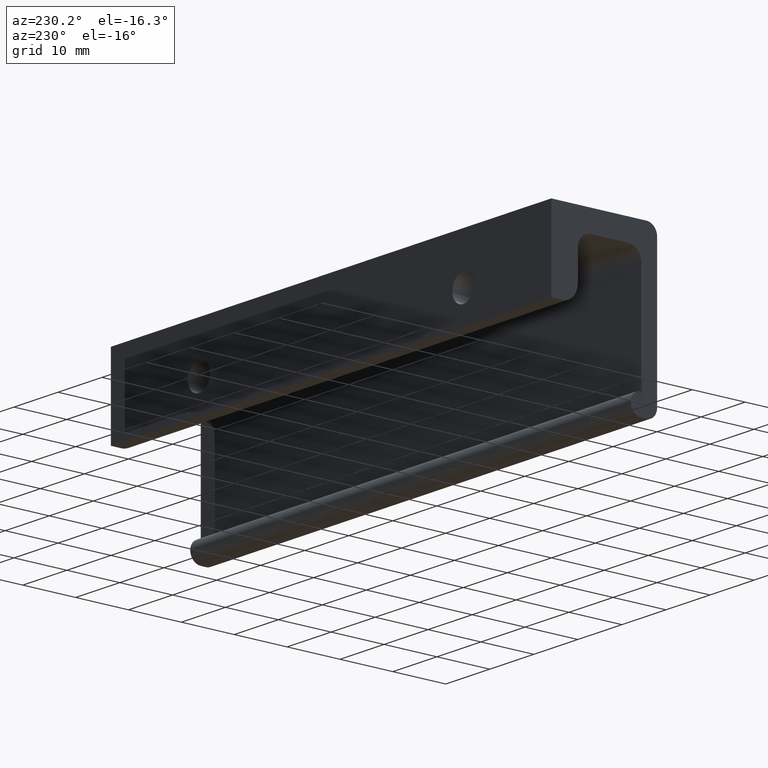
[diagram: clean part render]
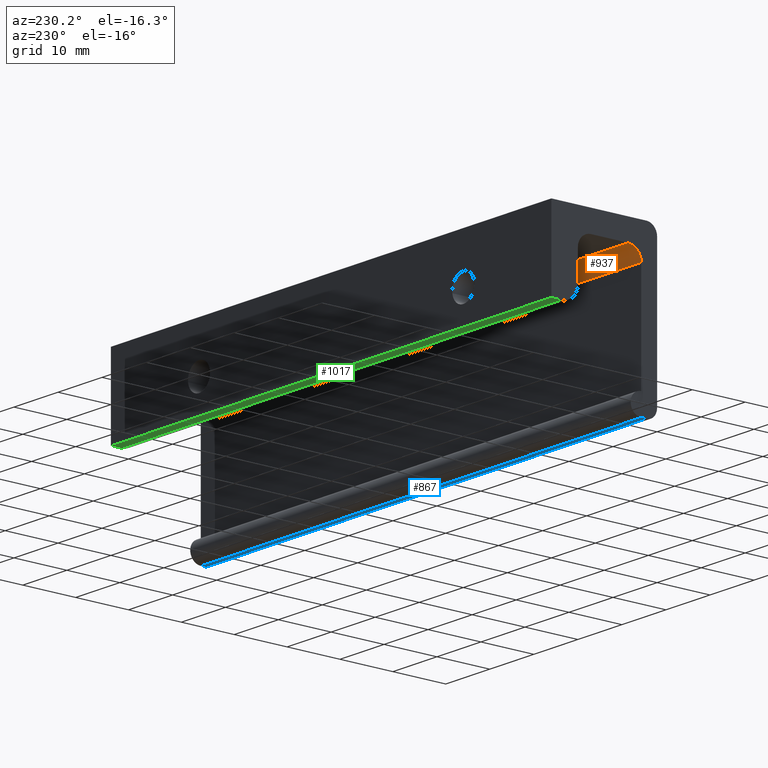
[diagram: same view with three faces highlighted in distinct colors, each labeled with its STEP entity id]
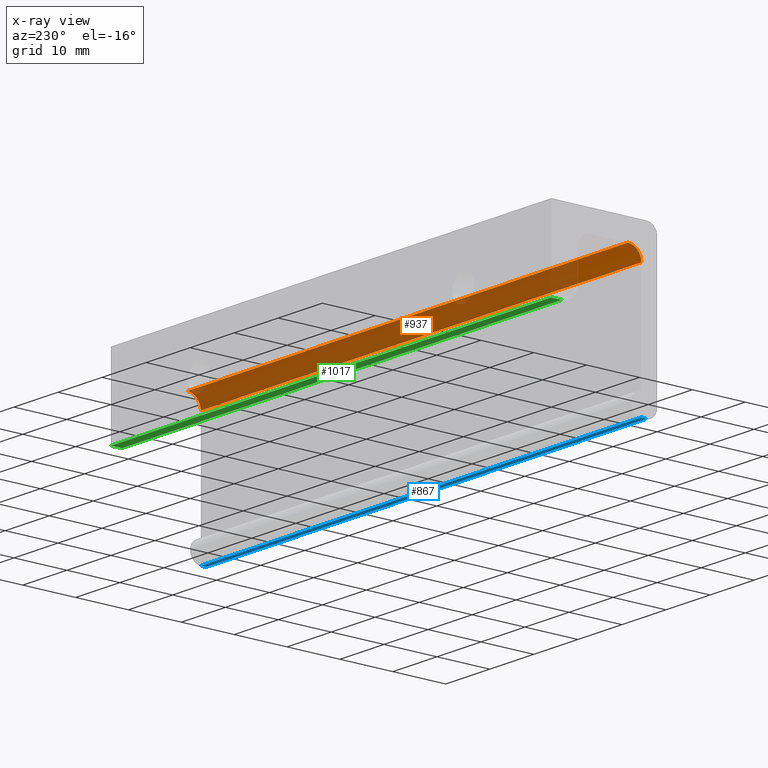
[diagram: x-ray of the same camera — body ghosted, the three highlighted faces saturated]
A machine part, auxiliary view with three faces highlighted in distinct colors.
The next image is the same camera in x-ray (body ghosted, the three faces saturated) — at least one of them is partly hidden behind the body in this view.
Their STEP definitions:

[orange] entity #937 — the highlighted face is a freeform B-spline surface patch.
#520=CARTESIAN_POINT('',(0.0,-14.500000000000000,-4.000000000000085));
#521=VERTEX_POINT('',#520);
#527=CARTESIAN_POINT('',(0.0,-17.0,-6.500000000000000));
#528=VERTEX_POINT('',#527);
#529=CARTESIAN_POINT('',(0.0,-14.500000000000000,-4.000000000000085));
#530=CARTESIAN_POINT('',(0.0,-17.000000000000004,-4.000000000000000));
#531=CARTESIAN_POINT('',(0.0,-17.0,-6.500000000000000));
#539=(BOUNDED_CURVE()B_SPLINE_CURVE(2,(#529,#530,#531),.UNSPECIFIED.,.F.,.U.)CURVE()GEOMETRIC_REPRESENTATION_ITEM()QUASI_UNIFORM_CURVE()RATIONAL_B_SPLINE_CURVE((1.0,0.707106781186548,1.0))REPRESENTATION_ITEM(''));
#540=EDGE_CURVE('',#521,#528,#539,.T.);
#700=CARTESIAN_POINT('',(100.0,-17.0,-6.500000000000000));
#701=VERTEX_POINT('',#700);
#707=CARTESIAN_POINT('',(100.0,-14.500000000000000,-4.000000000000085));
#708=VERTEX_POINT('',#707);
#709=CARTESIAN_POINT('',(100.0,-14.500000000000000,-4.0));
#710=CARTESIAN_POINT('',(100.0,-17.000000000000004,-4.000000000000000));
#711=CARTESIAN_POINT('',(100.0,-17.0,-6.500000000000000));
#719=(BOUNDED_CURVE()B_SPLINE_CURVE(2,(#709,#710,#711),.UNSPECIFIED.,.F.,.U.)CURVE()GEOMETRIC_REPRESENTATION_ITEM()QUASI_UNIFORM_CURVE()RATIONAL_B_SPLINE_CURVE((1.0,0.707106781186548,1.0))REPRESENTATION_ITEM(''));
#720=EDGE_CURVE('',#708,#701,#719,.T.);
#903=CARTESIAN_POINT('',(100.0,-17.0,-6.500000000000000));
#904=CARTESIAN_POINT('',(0.0,-17.0,-6.500000000000000));
#905=QUASI_UNIFORM_CURVE('',1,(#903,#904),.UNSPECIFIED.,.F.,.U.);
#906=EDGE_CURVE('',#701,#528,#905,.T.);
#913=CARTESIAN_POINT('',(102.500000000000000,-14.434557629230310,-4.000856687561107));
#914=CARTESIAN_POINT('',(-2.562500000000000,-14.434557629230310,-4.000856687561107));
#915=CARTESIAN_POINT('',(102.500000000000010,-17.161893971485295,-3.929438872010022));
#916=CARTESIAN_POINT('',(-2.562500000000000,-17.161893971485295,-3.929438872010022));
#917=CARTESIAN_POINT('',(102.500000000000000,-16.995336996054672,-6.652621348837139));
#918=CARTESIAN_POINT('',(-2.562500000000000,-16.995336996054672,-6.652621348837139));
#926=(BOUNDED_SURFACE()B_SPLINE_SURFACE(1,2,((#913,#915,#917),(#914,#916,#918)),.UNSPECIFIED.,.F.,.F.,.U.)B_SPLINE_SURFACE_WITH_KNOTS((2,2),(3,3),(0.0,105.062500000000000),(0.0,4.400105308918333),.UNSPECIFIED.)GEOMETRIC_REPRESENTATION_ITEM()RATIONAL_B_SPLINE_SURFACE(((1.0,0.675590207615660,1.0),(1.0,0.675590207615660,1.0)))REPRESENTATION_ITEM('')SURFACE());
#927=ORIENTED_EDGE('',*,*,#540,.F.);
#928=CARTESIAN_POINT('',(100.0,-14.500000000000000,-4.000000000000085));
#929=CARTESIAN_POINT('',(0.0,-14.500000000000000,-4.000000000000085));
#930=QUASI_UNIFORM_CURVE('',1,(#928,#929),.UNSPECIFIED.,.F.,.U.);
#931=EDGE_CURVE('',#708,#521,#930,.T.);
#932=ORIENTED_EDGE('',*,*,#931,.F.);
#933=ORIENTED_EDGE('',*,*,#720,.T.);
#934=ORIENTED_EDGE('',*,*,#906,.T.);
#935=EDGE_LOOP('',(#927,#932,#933,#934));
#936=FACE_OUTER_BOUND('',#935,.T.);
#937=ADVANCED_FACE('',(#936),#926,.F.);

[blue] entity #867 — the highlighted face is a freeform B-spline surface patch.
#549=CARTESIAN_POINT('',(0.0,-17.000000000000249,-30.0));
#550=VERTEX_POINT('',#549);
#566=CARTESIAN_POINT('',(0.0,-18.0,-30.0));
#567=VERTEX_POINT('',#566);
#568=CARTESIAN_POINT('',(0.0,-17.000000000000249,-30.0));
#569=CARTESIAN_POINT('',(0.0,-18.0,-30.0));
#570=QUASI_UNIFORM_CURVE('',1,(#568,#569),.UNSPECIFIED.,.F.,.U.);
#571=EDGE_CURVE('',#550,#567,#570,.T.);
#661=CARTESIAN_POINT('',(100.0,-18.0,-30.0));
#662=VERTEX_POINT('',#661);
#676=CARTESIAN_POINT('',(100.0,-17.000000000000249,-30.0));
#677=VERTEX_POINT('',#676);
#678=CARTESIAN_POINT('',(100.0,-17.000000000000249,-30.0));
#679=CARTESIAN_POINT('',(100.0,-18.0,-30.0));
#680=QUASI_UNIFORM_CURVE('',1,(#678,#679),.UNSPECIFIED.,.F.,.U.);
#681=EDGE_CURVE('',#677,#662,#680,.T.);
#842=CARTESIAN_POINT('',(100.0,-18.0,-30.0));
#843=CARTESIAN_POINT('',(0.0,-18.0,-30.0));
#844=QUASI_UNIFORM_CURVE('',1,(#842,#843),.UNSPECIFIED.,.F.,.U.);
#845=EDGE_CURVE('',#662,#567,#844,.T.);
#852=CARTESIAN_POINT('',(104.994999806180600,-18.049949998061791,-30.0));
#853=CARTESIAN_POINT('',(-4.995002488389611,-18.049949998061791,-30.0));
#854=CARTESIAN_POINT('',(104.994999806180600,-16.950049975116361,-30.0));
#855=CARTESIAN_POINT('',(-4.995002488389611,-16.950049975116361,-30.0));
#856=B_SPLINE_SURFACE_WITH_KNOTS('',1,1,((#852,#854),(#853,#855)),.UNSPECIFIED.,.F.,.F.,.U.,(2,2),(2,2),(0.0,109.990002294570200),(0.041708334948495,0.958291687403247),.UNSPECIFIED.);
#857=ORIENTED_EDGE('',*,*,#571,.F.);
#858=CARTESIAN_POINT('',(100.0,-17.000000000000249,-30.0));
#859=CARTESIAN_POINT('',(0.0,-17.000000000000249,-30.0));
#860=QUASI_UNIFORM_CURVE('',1,(#858,#859),.UNSPECIFIED.,.F.,.U.);
#861=EDGE_CURVE('',#677,#550,#860,.T.);
#862=ORIENTED_EDGE('',*,*,#861,.F.);
#863=ORIENTED_EDGE('',*,*,#681,.T.);
#864=ORIENTED_EDGE('',*,*,#845,.T.);
#865=EDGE_LOOP('',(#857,#862,#863,#864));
#866=FACE_OUTER_BOUND('',#865,.T.);
#867=ADVANCED_FACE('',(#866),#856,.T.);

[green] entity #1017 — the highlighted face is a freeform B-spline surface patch.
#477=CARTESIAN_POINT('',(0.0,0.0,-15.0));
#478=VERTEX_POINT('',#477);
#484=CARTESIAN_POINT('',(0.0,-2.0,-15.0));
#485=VERTEX_POINT('',#484);
#486=CARTESIAN_POINT('',(0.0,0.0,-15.0));
#487=CARTESIAN_POINT('',(0.0,-2.0,-15.0));
#488=QUASI_UNIFORM_CURVE('',1,(#486,#487),.UNSPECIFIED.,.F.,.U.);
#489=EDGE_CURVE('',#478,#485,#488,.T.);
#625=CARTESIAN_POINT('',(100.0,0.0,-15.0));
#626=VERTEX_POINT('',#625);
#743=CARTESIAN_POINT('',(100.0,-2.0,-15.0));
#744=VERTEX_POINT('',#743);
#758=CARTESIAN_POINT('',(100.0,0.0,-15.0));
#759=CARTESIAN_POINT('',(100.0,-2.0,-15.0));
#760=QUASI_UNIFORM_CURVE('',1,(#758,#759),.UNSPECIFIED.,.F.,.U.);
#761=EDGE_CURVE('',#626,#744,#760,.T.);
#992=CARTESIAN_POINT('',(100.0,-2.0,-15.0));
#993=CARTESIAN_POINT('',(0.0,-2.0,-15.0));
#994=QUASI_UNIFORM_CURVE('',1,(#992,#993),.UNSPECIFIED.,.F.,.U.);
#995=EDGE_CURVE('',#744,#485,#994,.T.);
#1002=CARTESIAN_POINT('',(104.994999806180600,-2.099899996123612,-15.0));
#1003=CARTESIAN_POINT('',(-4.995002488389611,-2.099899996123612,-15.0));
#1004=CARTESIAN_POINT('',(104.994999806180600,0.099900049767792,-15.0));
#1005=CARTESIAN_POINT('',(-4.995002488389611,0.099900049767792,-15.0));
#1006=B_SPLINE_SURFACE_WITH_KNOTS('',1,1,((#1002,#1004),(#1003,#1005)),.UNSPECIFIED.,.F.,.F.,.U.,(2,2),(2,2),(0.0,109.990002294570200),(0.0,2.199800045891404),.UNSPECIFIED.);
#1007=ORIENTED_EDGE('',*,*,#489,.F.);
#1008=CARTESIAN_POINT('',(100.0,0.0,-15.0));
#1009=CARTESIAN_POINT('',(0.0,0.0,-15.0));
#1010=QUASI_UNIFORM_CURVE('',1,(#1008,#1009),.UNSPECIFIED.,.F.,.U.);
#1011=EDGE_CURVE('',#626,#478,#1010,.T.);
#1012=ORIENTED_EDGE('',*,*,#1011,.F.);
#1013=ORIENTED_EDGE('',*,*,#761,.T.);
#1014=ORIENTED_EDGE('',*,*,#995,.T.);
#1015=EDGE_LOOP('',(#1007,#1012,#1013,#1014));
#1016=FACE_OUTER_BOUND('',#1015,.T.);
#1017=ADVANCED_FACE('',(#1016),#1006,.T.);